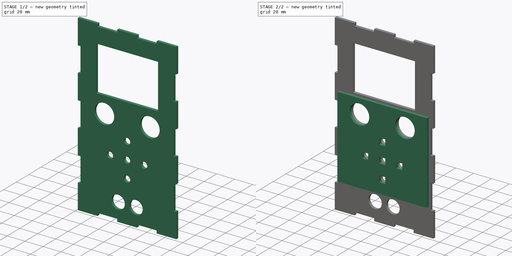
[diagram: build sequence overview — one tinted view per stage of 2, left to right]
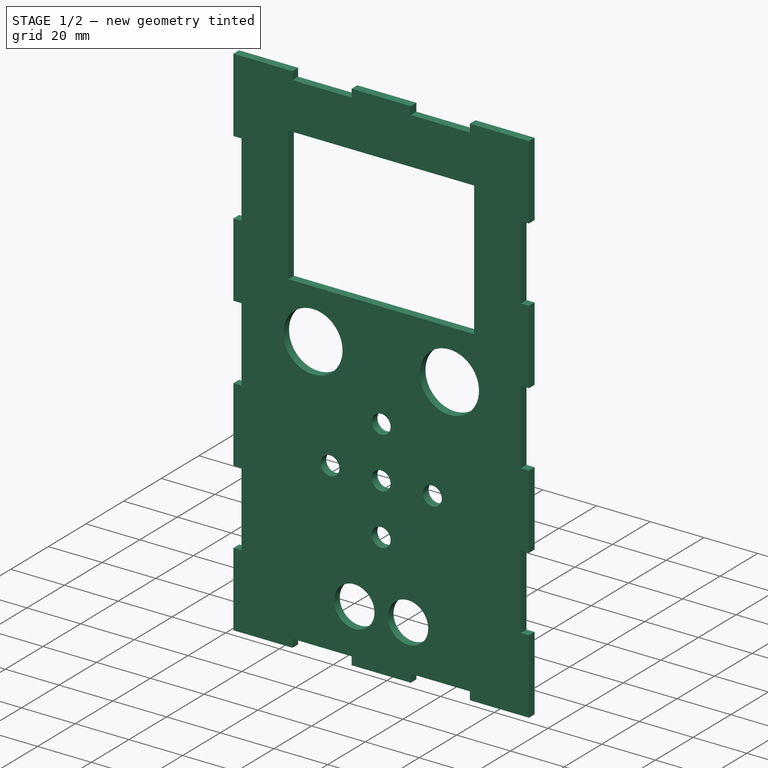
[diagram: stage 1 of 2 — iso view after this stage's code; geometry added in this stage tinted green]
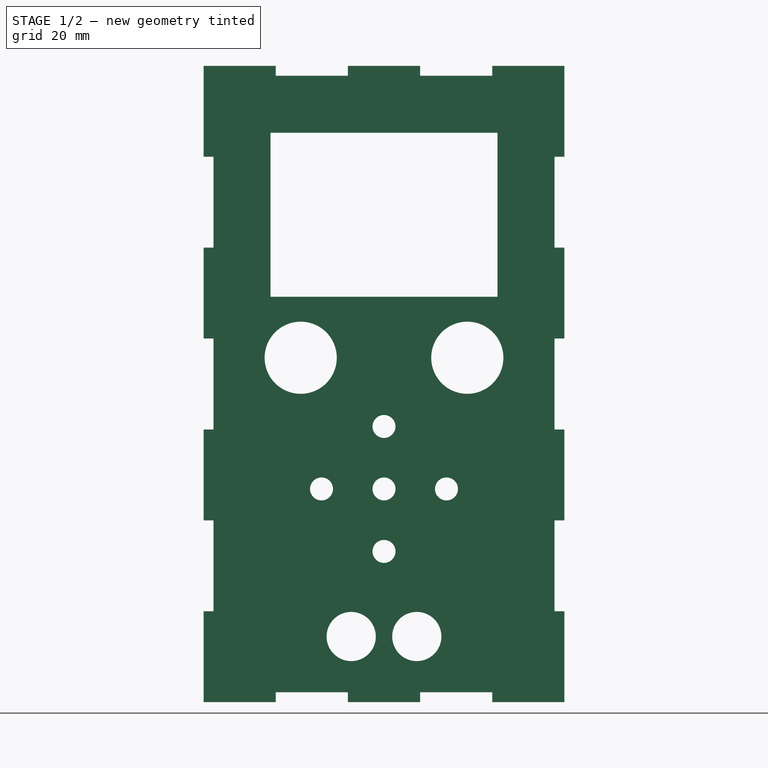
[diagram: stage 1 of 2 — front view after this stage's code; geometry added in this stage tinted green]
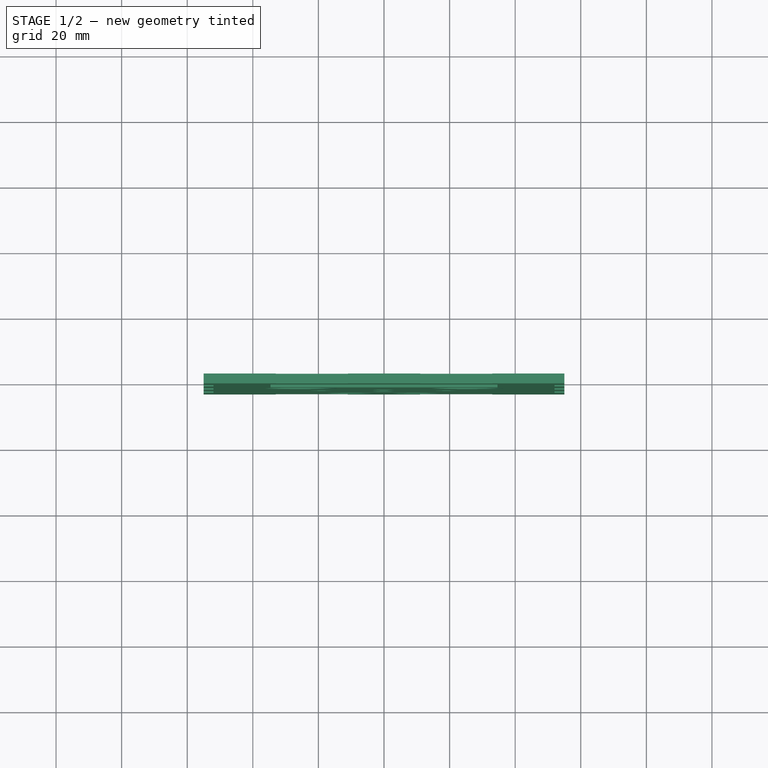
[diagram: stage 1 of 2 — top view after this stage's code; geometry added in this stage tinted green]
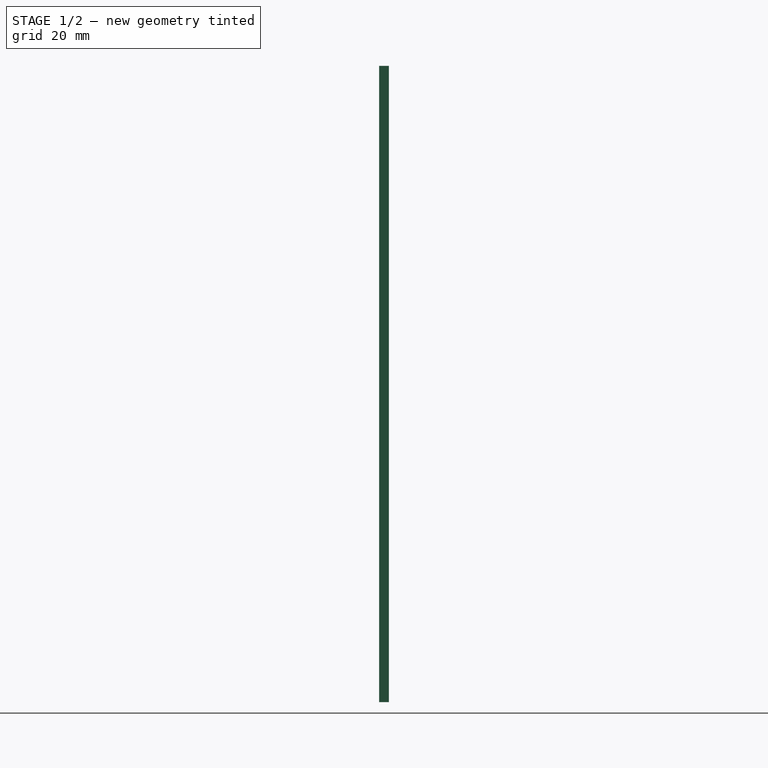
[diagram: stage 1 of 2 — right view after this stage's code; geometry added in this stage tinted green]
FCSTD DOCUMENT  (FreeCAD 0.21R33675 (Git))
Label: digipsu
License: All rights reserved
LicenseURL: https://en.wikipedia.org/wiki/All_rights_reserved
objects: Sketcher::SketchObject×3, PartDesign::Pad×2, PartDesign::Plane×2, Spreadsheet::Sheet×1, PartDesign::Body×1
note: 10 computed .brp shape members not serialized (recipe doc carries the construction recipe); baked Part::Feature solids carry a one-line shape summary decoded from their .brp

FEATURE [Sketcher::SketchObject] Sketch  label="Front"
  FullyConstrained = true
  MapMode = 5
  Placement = pos=(0,0,0) rot=(1,0,0;1.5708rad)
  Support = -> [XZ_Plane]
  expr: Constraints[139] = <<Parameters>>.thickness
  expr: Constraints[32] = <<Parameters>>.height
  expr: Constraints[33] = <<Parameters>>.width
  expr: Constraints[34] = <<Parameters>>.thickness
  expr: Constraints[70] = <<Parameters>>.thickness
  expr: Constraints[96] = <<Parameters>>.thickness
  sketch-geometry (71):
    g0: LineSegment StartX=-55 StartY=-97 StartZ=0 EndX=55 EndY=-97 EndZ=0
    g1: LineSegment StartX=55 StartY=-97 StartZ=0 EndX=55 EndY=97 EndZ=0
    g2: LineSegment StartX=55 StartY=97 StartZ=0 EndX=-55 EndY=97 EndZ=0
    g3: GeomPoint X=0 Y=0 Z=0
    g4: LineSegment StartX=55 StartY=97 StartZ=0 EndX=55 EndY=69.2857 EndZ=0
    g5: LineSegment StartX=55 StartY=69.2857 StartZ=0 EndX=52 EndY=69.2857 EndZ=0
    g6: LineSegment StartX=52 StartY=69.2857 StartZ=0 EndX=52 EndY=41.5714 EndZ=0
    g7: LineSegment StartX=55 StartY=41.5714 StartZ=0 EndX=55 EndY=13.8571 EndZ=0
    g8: LineSegment StartX=55 StartY=13.8571 StartZ=0 EndX=52 EndY=13.8571 EndZ=0
    g9: LineSegment StartX=55 StartY=-41.5714 StartZ=0 EndX=52 EndY=-41.5714 EndZ=0
    g10: LineSegment StartX=52 StartY=-41.5714 StartZ=0 EndX=52 EndY=-69.2857 EndZ=0
    g11: LineSegment StartX=52 StartY=-69.2857 StartZ=0 EndX=55 EndY=-69.2857 EndZ=0
    g12: LineSegment StartX=55 StartY=-69.2857 StartZ=0 EndX=55 EndY=-97 EndZ=0
    g13: LineSegment StartX=55 StartY=-41.5714 StartZ=0 EndX=55 EndY=-13.8571 EndZ=0
    g14: LineSegment StartX=55 StartY=-13.8571 StartZ=0 EndX=52 EndY=-13.8571 EndZ=0
    g15: LineSegment StartX=52 StartY=-13.8571 StartZ=0 EndX=52 EndY=13.8571 EndZ=0
    g16: LineSegment StartX=52 StartY=41.5714 StartZ=0 EndX=55 EndY=41.5714 EndZ=0
    g17: LineSegment StartX=55 StartY=-97 StartZ=0 EndX=33 EndY=-97 EndZ=0
    g18: LineSegment StartX=33 StartY=-97 StartZ=0 EndX=33 EndY=-94 EndZ=0
    g19: LineSegment StartX=33 StartY=-94 StartZ=0 EndX=11 EndY=-94 EndZ=0
    g20: LineSegment StartX=11 StartY=-94 StartZ=0 EndX=11 EndY=-97 EndZ=0
    g21: LineSegment StartX=11 StartY=-97 StartZ=0 EndX=-11 EndY=-97 EndZ=0
    g22: LineSegment StartX=-11 StartY=-97 StartZ=0 EndX=-11 EndY=-94 EndZ=0
    g23: LineSegment StartX=-11 StartY=-94 StartZ=0 EndX=-33 EndY=-94 EndZ=0
    g24: LineSegment StartX=-33 StartY=-94 StartZ=0 EndX=-33 EndY=-97 EndZ=0
    g25: LineSegment StartX=-33 StartY=-97 StartZ=0 EndX=-55 EndY=-97 EndZ=0
    g26: LineSegment StartX=55 StartY=97 StartZ=0 EndX=33 EndY=97 EndZ=0
    g27: LineSegment StartX=33 StartY=97 StartZ=0 EndX=33 EndY=94 EndZ=0
    g28: LineSegment StartX=33 StartY=94 StartZ=0 EndX=11 EndY=94 EndZ=0
    g29: LineSegment StartX=11 StartY=94 StartZ=0 EndX=11 EndY=97 EndZ=0
    g30: LineSegment StartX=11 StartY=97 StartZ=0 EndX=-11 EndY=97 EndZ=0
    g31: LineSegment StartX=-11 StartY=97 StartZ=0 EndX=-11 EndY=94 EndZ=0
    g32: LineSegment StartX=-11 StartY=94 StartZ=0 EndX=-33 EndY=94 EndZ=0
    g33: LineSegment StartX=-33 StartY=94 StartZ=0 EndX=-33 EndY=97 EndZ=0
    g34: LineSegment StartX=-33 StartY=97 StartZ=0 EndX=-55 EndY=97 EndZ=0
    g35: LineSegment StartX=-55 StartY=-97 StartZ=0 EndX=-55 EndY=97 EndZ=0
    g36: LineSegment StartX=-55 StartY=97 StartZ=0 EndX=-55 EndY=69.2857 EndZ=0
    g37: LineSegment StartX=-55 StartY=69.2857 StartZ=0 EndX=-52 EndY=69.2857 EndZ=0
    g38: LineSegment StartX=-52 StartY=69.2857 StartZ=0 EndX=-52 EndY=41.5714 EndZ=0
    g39: LineSegment StartX=-55 StartY=41.5714 StartZ=0 EndX=-55 EndY=13.8571 EndZ=0
    g40: LineSegment StartX=-55 StartY=13.8571 StartZ=0 EndX=-52 EndY=13.8571 EndZ=0
    g41: LineSegment StartX=-55 StartY=-41.5714 StartZ=0 EndX=-52 EndY=-41.5714 EndZ=0
    g42: LineSegment StartX=-52 StartY=-41.5714 StartZ=0 EndX=-52 EndY=-69.2857 EndZ=0
    g43: LineSegment StartX=-52 StartY=-69.2857 StartZ=0 EndX=-55 EndY=-69.2857 EndZ=0
    g44: LineSegment StartX=-55 StartY=-69.2857 StartZ=0 EndX=-55 EndY=-97 EndZ=0
    g45: LineSegment StartX=-55 StartY=-41.5714 StartZ=0 EndX=-55 EndY=-13.8571 EndZ=0
    g46: LineSegment StartX=-55 StartY=-13.8571 StartZ=0 EndX=-52 EndY=-13.8571 EndZ=0
    g47: LineSegment StartX=-52 StartY=-13.8571 StartZ=0 EndX=-52 EndY=13.8571 EndZ=0
    g48: LineSegment StartX=-52 StartY=41.5714 StartZ=0 EndX=-55 EndY=41.5714 EndZ=0
    g49: LineSegment StartX=-34.6 StartY=76.6 StartZ=0 EndX=-34.6 EndY=26.6 EndZ=0
    g50: LineSegment StartX=-34.6 StartY=26.6 StartZ=0 EndX=34.6 EndY=26.6 EndZ=0
    g51: LineSegment StartX=34.6 StartY=26.6 StartZ=0 EndX=34.6 EndY=76.6 EndZ=0
    g52: LineSegment StartX=34.6 StartY=76.6 StartZ=0 EndX=-34.6 EndY=76.6 EndZ=0
    g53: GeomPoint X=0 Y=51.6 Z=0
    g54: Circle CenterX=-25.4 CenterY=8.005 CenterZ=0 NormalX=0 NormalY=0 NormalZ=1 AngleXU=0 Radius=11
    g55: Circle CenterX=25.4 CenterY=8.005 CenterZ=0 NormalX=0 NormalY=0 NormalZ=1 AngleXU=0 Radius=11
    g56: Circle CenterX=0 CenterY=-12.95 CenterZ=0 NormalX=0 NormalY=0 NormalZ=1 AngleXU=0 Radius=3.5
    g57: Circle CenterX=-19.05 CenterY=-32 CenterZ=0 NormalX=0 NormalY=0 NormalZ=1 AngleXU=0 Radius=3.5
    g58: Circle CenterX=0 CenterY=-32 CenterZ=0 NormalX=0 NormalY=0 NormalZ=1 AngleXU=0 Radius=3.5
    g59: Circle CenterX=19.05 CenterY=-32 CenterZ=0 NormalX=0 NormalY=0 NormalZ=1 AngleXU=0 Radius=3.5
    g60: Circle CenterX=0 CenterY=-51.05 CenterZ=0 NormalX=0 NormalY=0 NormalZ=1 AngleXU=0 Radius=3.5
    g61: Circle CenterX=-10 CenterY=-77 CenterZ=0 NormalX=0 NormalY=0 NormalZ=1 AngleXU=0 Radius=7.5
    g62: Circle CenterX=10 CenterY=-77 CenterZ=0 NormalX=0 NormalY=0 NormalZ=1 AngleXU=0 Radius=7.5
    g63: LineSegment StartX=0 StartY=-32 StartZ=0 EndX=19.05 EndY=-32 EndZ=0
    g64: LineSegment StartX=0 StartY=-32 StartZ=0 EndX=-19.05 EndY=-32 EndZ=0
    g65: LineSegment StartX=0 StartY=-32 StartZ=0 EndX=0 EndY=-51.05 EndZ=0
    g66: LineSegment StartX=0 StartY=-32 StartZ=0 EndX=0 EndY=-12.95 EndZ=0
    g67: LineSegment StartX=-34.6 StartY=76.6 StartZ=0 EndX=-55 EndY=76.6 EndZ=0
    g68: LineSegment StartX=-34.6 StartY=76.6 StartZ=0 EndX=-34.6 EndY=97 EndZ=0
    g69: Circle CenterX=-25.4 CenterY=8.005 CenterZ=0 NormalX=0 NormalY=0 NormalZ=1 AngleXU=0 Radius=12.5
    g70: Circle CenterX=25.4 CenterY=8.005 CenterZ=0 NormalX=0 NormalY=0 NormalZ=1 AngleXU=0 Radius=12.5
  constraints (199):
    c: Coincident(g0,g1)
    c: Coincident(g1,g2)
    c: Symmetric(g0,g2,g3)
    c: Coincident(g3,g-1)
    c: Coincident(g4,g1)
    c: PointOnObject(g4,g1)
    c: Vertical(g4)
    c: Coincident(g5,g4)
    c: Horizontal(g5)
    c: Coincident(g6,g5)
    c: PointOnObject(g7,g1)
    c: PointOnObject(g7,g1)
    c: Coincident(g8,g7)
    c: Horizontal(g8)
    c: PointOnObject(g9,g1)
    c: Horizontal(g9)
    c: Coincident(g10,g9)
    c: Coincident(g11,g10)
    c: PointOnObject(g11,g1)
    c: Horizontal(g11)
    c: Coincident(g12,g11)
    c: Coincident(g12,g0)
    c: Coincident(g13,g9)
    c: PointOnObject(g13,g1)
    c: Coincident(g14,g13)
    c: Horizontal(g14)
    c: Coincident(g15,g14)
    c: Coincident(g15,g8)
    c: Vertical(g15)
    c: Equal(g4,g7)
    c: Equal(g7,g13)
    c: Equal(g13,g12)
    c: DistanceY(g1,g1) = 194
    c: DistanceX(g0,g0) = 110
    c: DistanceX(g5,g5) = 3
    c: Coincident(g16,g6)
    c: Coincident(g16,g7)
    c: Horizontal(g16)
    c: Equal(g5,g8)
    c: Equal(g5,g9)
    c: Vertical(g10)
    c: Equal(g6,g10)
    c: Equal(g6,g15)
    c: Equal(g6,g4)
    c: Vertical(g6)
    c: Coincident(g17,g12)
    c: PointOnObject(g17,g0)
    c: Coincident(g18,g17)
    c: Vertical(g18)
    c: Coincident(g19,g18)
    c: Horizontal(g19)
    c: Coincident(g20,g19)
    c: PointOnObject(g20,g0)
    c: Vertical(g20)
    c: Coincident(g21,g20)
    c: PointOnObject(g21,g0)
    c: Horizontal(g21)
    c: Coincident(g22,g21)
    c: Vertical(g22)
    c: Coincident(g23,g22)
    c: Horizontal(g23)
    c: Coincident(g24,g23)
    c: PointOnObject(g24,g0)
    c: Vertical(g24)
    c: Coincident(g25,g24)
    c: Equal(g24,g20)
    c: Equal(g23,g19)
    c: Equal(g25,g21)
    c: Equal(g21,g17)
    c: Equal(g23,g25)
    c: DistanceY(g24,g24) = 3
    c: Coincident(g27,g26)
    c: Vertical(g27)
    c: Coincident(g28,g27)
    c: Horizontal(g28)
    c: Coincident(g29,g28)
    c: Vertical(g29)
    c: Coincident(g30,g29)
    c: Coincident(g31,g30)
    c: Vertical(g31)
    c: Coincident(g32,g31)
    c: Horizontal(g32)
    c: Coincident(g33,g32)
    c: Vertical(g33)
    c: Coincident(g34,g33)
    c: Equal(g33,g29)
    c: Equal(g32,g28)
    c: Equal(g34,g30)
    c: Equal(g30,g26)
    c: Equal(g32,g34)
    c: PointOnObject(g33,g2)
    c: Coincident(g4,g26)
    c: PointOnObject(g26,g2)
    c: PointOnObject(g29,g2)
    c: PointOnObject(g30,g2)
    c: Horizontal(g2)
    c: DistanceY(g33,g33) = 3
    c: Coincident(g36,g35)
    c: PointOnObject(g36,g35)
    c: Vertical(g36)
    c: Coincident(g37,g36)
    c: Horizontal(g37)
    c: Coincident(g38,g37)
    c: PointOnObject(g39,g35)
    c: PointOnObject(g39,g35)
    c: Coincident(g40,g39)
    c: Horizontal(g40)
    c: PointOnObject(g41,g35)
    c: Horizontal(g41)
    c: Coincident(g42,g41)
    c: Coincident(g43,g42)
    c: PointOnObject(g43,g35)
    c: Horizontal(g43)
    c: Coincident(g44,g43)
    c: Coincident(g45,g41)
    c: PointOnObject(g45,g35)
    c: Coincident(g46,g45)
    c: Horizontal(g46)
    c: Coincident(g47,g46)
    c: Coincident(g47,g40)
    c: Vertical(g47)
    c: Equal(g36,g39)
    c: Equal(g39,g45)
    c: Equal(g45,g44)
    c: Coincident(g48,g38)
    c: Coincident(g48,g39)
    c: Horizontal(g48)
    c: Equal(g37,g40)
    c: Equal(g37,g41)
    c: Vertical(g42)
    c: Equal(g38,g42)
    c: Equal(g38,g47)
    c: Equal(g38,g36)
    c: Vertical(g38)
    c: Coincident(g36,g34)
    c: Coincident(g35,g25)
    c: Coincident(g0,g25)
    c: Coincident(g2,g34)
    c: Coincident(g25,g44)
    c: DistanceX(g37,g37) = 3
    c: Coincident(g49,g50)
    c: Coincident(g50,g51)
    c: Coincident(g51,g52)
    c: Coincident(g52,g49)
    c: Horizontal(g50)
    c: Horizontal(g52)
    c: Vertical(g49)
    c: Vertical(g51)
    c: Symmetric(g50,g49,g53)
    c: PointOnObject(g53,g-2)
    c: DistanceX(g52,g52) = 69.2
    c: DistanceY(g49,g49) = 50
    c: PointOnObject(g58,g-2)
    c: Coincident(g63,g58)
    c: Coincident(g63,g59)
    c: Horizontal(g63)
    c: Coincident(g64,g58)
    c: Coincident(g64,g57)
    c: Coincident(g65,g58)
    c: Coincident(g65,g60)
    c: Coincident(g66,g58)
    c: Coincident(g66,g56)
    c: Horizontal(g64)
    c: Vertical(g66)
    c: Vertical(g65)
    c: Equal(g66,g64)
    c: Equal(g64,g65)
    c: Equal(g65,g63)
    c: Equal(g58,g56)
    c: Equal(g58,g59)
    c: Equal(g58,g57)
    c: Equal(g58,g60)
    c: Equal(g55,g54)
    c: Equal(g61,g62)
    c: Symmetric(g55,g54,g-2)
    c: Symmetric(g61,g62,g-2)
    c: Diameter(g54) = 22
    c: DistanceX(g61,g62) = 20
    c: DistanceX(g54,g55) = 50.8
    c: DistanceY(g25,g61) = 20
    c: DistanceY(g25,g58) = 65
    c: DistanceY(g25,g54) = 105.005
    c: DistanceY(g25,g53) = 148.6
    c: Diameter(g57) = 7
    c: DistanceY(g66,g66) = 19.05
    c: Diameter(g61) = 15
    c: Coincident(g67,g49)
    c: PointOnObject(g67,g36)
    c: Horizontal(g67)
    c: Coincident(g68,g49)
    c: PointOnObject(g68,g34)
    c: Vertical(g68)
    c: Equal(g68,g67)
    c: Coincident(g69,g54)
    c: Coincident(g70,g55)
    c: Diameter(g69) = 25
    c: Equal(g70,g69)
    c: DistanceX(g54,g56) = 25.4
    c: DistanceY(g56,g54) = 20.955
FEATURE [Spreadsheet::Sheet] Spreadsheet  label="Parameters"
  cells = A1='Width; B1(width)=110; A2='Height; B2(height)=194; A3='Depth; B3(depth)=300; A4='Thickness; B4(thickness)=3
FEATURE [PartDesign::Pad] Pad
  Direction = (0,-1,2e-16)
  Length = 3
  Length2 = 10
  Placement = pos=(0,0,0) rot=(1,0,0;1.5708rad)
  Profile = -> Sketch
  ReferenceAxis = -> Sketch [N_Axis]
  Type = 0
  expr: Length = <<Parameters>>.thickness
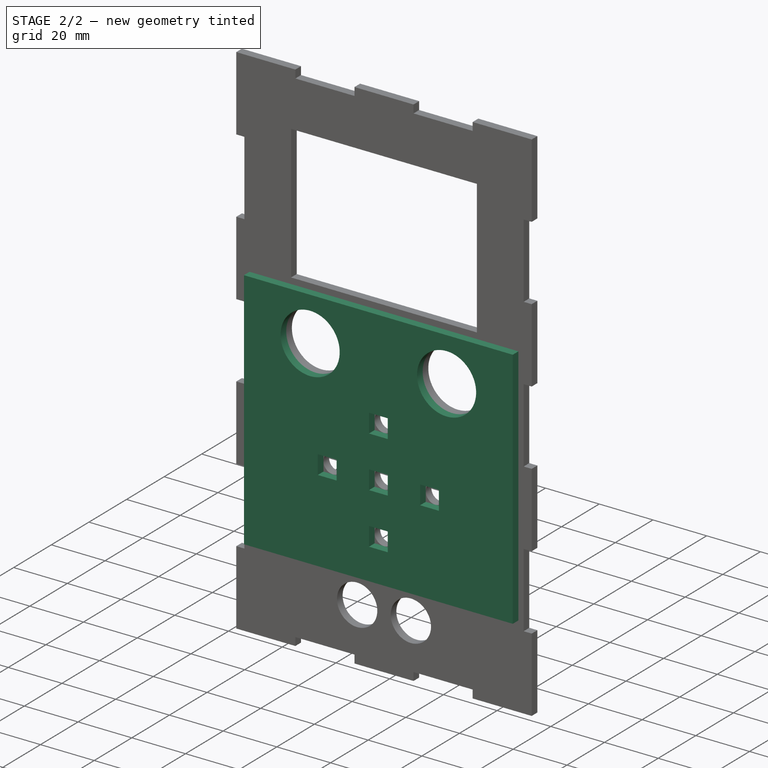
[diagram: stage 2 of 2 — iso view after this stage's code; geometry added in this stage tinted green]
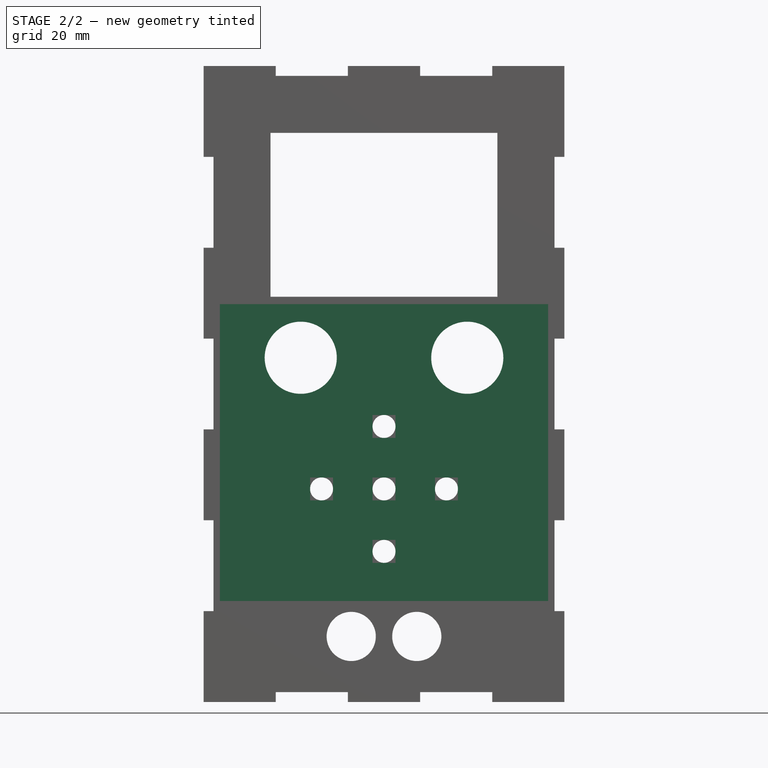
[diagram: stage 2 of 2 — front view after this stage's code; geometry added in this stage tinted green]
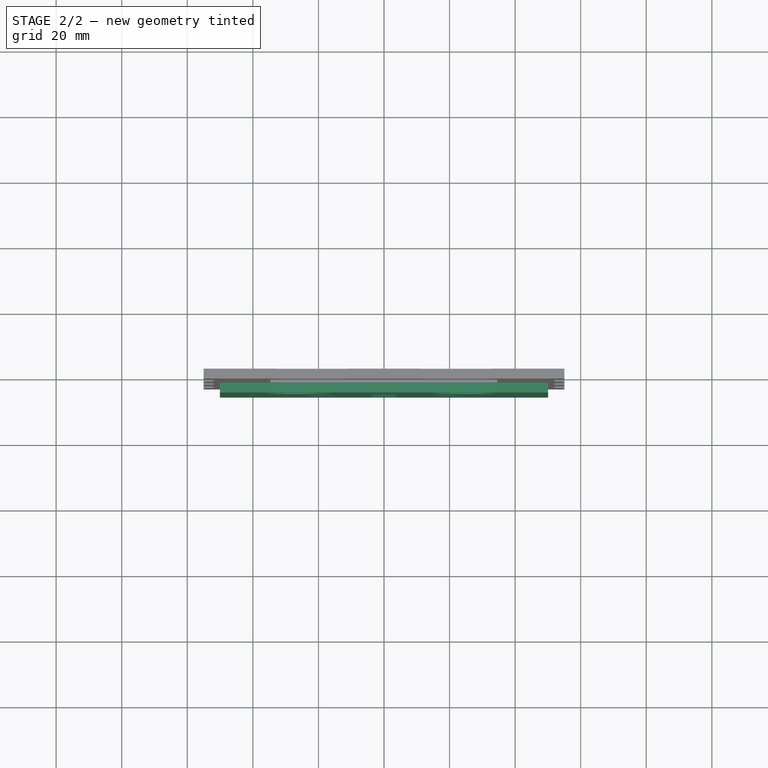
[diagram: stage 2 of 2 — top view after this stage's code; geometry added in this stage tinted green]
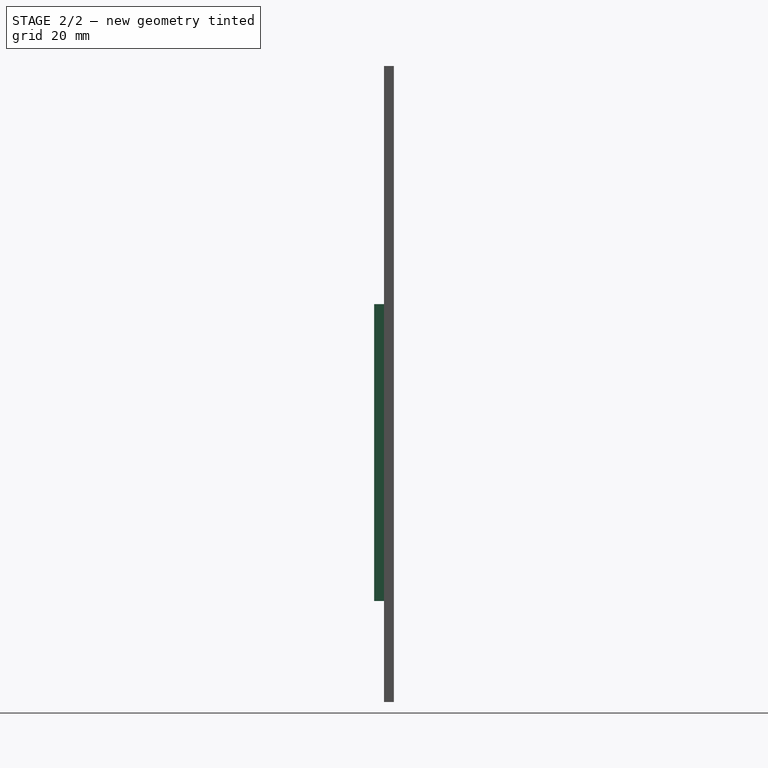
[diagram: stage 2 of 2 — right view after this stage's code; geometry added in this stage tinted green]
FEATURE [PartDesign::Plane] DatumPlane
  AttachmentOffset = pos=(0,0,55) rot=(0,0,1;0rad)
  Length = 60
  MapMode = 5
  Placement = pos=(55,-1.22e-14,1.22e-14) rot=(0.57735,0.57735,0.57735;2.0944rad)
  ResizeMode = 0
  Support = -> [YZ_Plane]
  Width = 60
  expr: .AttachmentOffset.Base.z = <<Parameters>>.width / 2
FEATURE [Sketcher::SketchObject] Sketch001  label="Left"
  FullyConstrained = true
  MapMode = 5
  Placement = pos=(55,-1.22e-14,1.22e-14) rot=(0.57735,0.57735,0.57735;2.0944rad)
  Support = -> [DatumPlane]
  expr: Constraints[10] = <<Parameters>>.height
  expr: Constraints[11] = <<Parameters>>.depth
  sketch-geometry (5):
    g0: LineSegment StartX=-300 StartY=97 StartZ=0 EndX=-300 EndY=-97 EndZ=0
    g1: LineSegment StartX=-300 StartY=-97 StartZ=0 EndX=0 EndY=-97 EndZ=0
    g2: LineSegment StartX=0 StartY=-97 StartZ=0 EndX=0 EndY=97 EndZ=0
    g3: LineSegment StartX=0 StartY=97 StartZ=0 EndX=-300 EndY=97 EndZ=0
    g4: GeomPoint X=-150 Y=0 Z=0
  constraints (13):
    c: Coincident(g0,g1)
    c: Coincident(g1,g2)
    c: Coincident(g2,g3)
    c: Coincident(g3,g0)
    c: Horizontal(g1)
    c: Horizontal(g3)
    c: Vertical(g0)
    c: Vertical(g2)
    c: Symmetric(g1,g0,g4)
    c: PointOnObject(g2,g-2)
    c: DistanceY(g0,g0) = 194
    c: DistanceX(g1,g1) = 300
    c: PointOnObject(g4,g-1)
FEATURE [PartDesign::Plane] DatumPlane001
  Length = 60
  MapMode = 5
  Placement = pos=(0,-3,7e-16) rot=(1,0,0;1.5708rad)
  ResizeMode = 0
  Support = -> [Pad]
  Width = 60
FEATURE [Sketcher::SketchObject] Sketch002
  ExternalGeometry = -> [Pad]
  FullyConstrained = false
  MapMode = 5
  Placement = pos=(0,-3,7e-16) rot=(1,0,0;1.5708rad)
  Support = -> [DatumPlane001]
  sketch-geometry (32):
    g0: LineSegment StartX=-50.051 StartY=24.3801 StartZ=0 EndX=-50.051 EndY=-66.1739 EndZ=0
    g1: LineSegment StartX=-50.051 StartY=-66.1739 StartZ=0 EndX=50.051 EndY=-66.1739 EndZ=0
    g2: LineSegment StartX=50.051 StartY=-66.1739 StartZ=0 EndX=50.051 EndY=24.3801 EndZ=0
    g3: LineSegment StartX=50.051 StartY=24.3801 StartZ=0 EndX=-50.051 EndY=24.3801 EndZ=0
    g4: GeomPoint X=0 Y=-20.8969 Z=0
    g5: Circle CenterX=-25 CenterY=8 CenterZ=0 NormalX=0 NormalY=0 NormalZ=1 AngleXU=0 Radius=11
    g6: Circle CenterX=25 CenterY=8 CenterZ=0 NormalX=0 NormalY=0 NormalZ=1 AngleXU=0 Radius=11
    g7: LineSegment StartX=-3.5 StartY=-16.45 StartZ=0 EndX=-3.5 EndY=-9.45 EndZ=0
    g8: LineSegment StartX=-3.5 StartY=-9.45 StartZ=0 EndX=3.5 EndY=-9.45 EndZ=0
    g9: LineSegment StartX=3.5 StartY=-9.45 StartZ=0 EndX=3.5 EndY=-16.45 EndZ=0
    g10: LineSegment StartX=3.5 StartY=-16.45 StartZ=0 EndX=-3.5 EndY=-16.45 EndZ=0
    g11: GeomPoint X=0 Y=-12.95 Z=0
    g12: LineSegment StartX=-3.5 StartY=-28.5 StartZ=0 EndX=-3.5 EndY=-35.5 EndZ=0
    g13: LineSegment StartX=-3.5 StartY=-35.5 StartZ=0 EndX=3.5 EndY=-35.5 EndZ=0
    g14: LineSegment StartX=3.5 StartY=-35.5 StartZ=0 EndX=3.5 EndY=-28.5 EndZ=0
    g15: LineSegment StartX=3.5 StartY=-28.5 StartZ=0 EndX=-3.5 EndY=-28.5 EndZ=0
    g16: GeomPoint X=0 Y=-32 Z=0
    g17: LineSegment StartX=15.55 StartY=-28.5 StartZ=0 EndX=15.55 EndY=-35.5 EndZ=0
    g18: LineSegment StartX=15.55 StartY=-35.5 StartZ=0 EndX=22.55 EndY=-35.5 EndZ=0
    g19: LineSegment StartX=22.55 StartY=-35.5 StartZ=0 EndX=22.55 EndY=-28.5 EndZ=0
    g20: LineSegment StartX=22.55 StartY=-28.5 StartZ=0 EndX=15.55 EndY=-28.5 EndZ=0
    g21: GeomPoint X=19.05 Y=-32 Z=0
    g22: LineSegment StartX=-15.55 StartY=-28.5 StartZ=0 EndX=-15.55 EndY=-35.5 EndZ=0
    g23: LineSegment StartX=-15.55 StartY=-35.5 StartZ=0 EndX=-22.55 EndY=-35.5 EndZ=0
    g24: LineSegment StartX=-22.55 StartY=-35.5 StartZ=0 EndX=-22.55 EndY=-28.5 EndZ=0
    g25: LineSegment StartX=-22.55 StartY=-28.5 StartZ=0 EndX=-15.55 EndY=-28.5 EndZ=0
    g26: GeomPoint X=-19.05 Y=-32 Z=0
    g27: LineSegment StartX=-3.5 StartY=-47.55 StartZ=0 EndX=-3.5 EndY=-54.55 EndZ=0
    g28: LineSegment StartX=-3.5 StartY=-54.55 StartZ=0 EndX=3.5 EndY=-54.55 EndZ=0
    g29: LineSegment StartX=3.5 StartY=-54.55 StartZ=0 EndX=3.5 EndY=-47.55 EndZ=0
    g30: LineSegment StartX=3.5 StartY=-47.55 StartZ=0 EndX=-3.5 EndY=-47.55 EndZ=0
    g31: GeomPoint X=0 Y=-51.05 Z=0
  constraints (77):
    c: Coincident(g0,g1)
    c: Coincident(g1,g2)
    c: Coincident(g2,g3)
    c: Coincident(g3,g0)
    c: Symmetric(g1,g0,g4)
    c: Coincident(g5,g-46)
    c: Coincident(g6,g-47)
    c: Coincident(g7,g8)
    c: Coincident(g8,g9)
    c: Coincident(g9,g10)
    c: Coincident(g10,g7)
    c: Horizontal(g8)
    c: Horizontal(g10)
    c: Vertical(g7)
    c: Vertical(g9)
    c: Symmetric(g8,g7,g11)
    c: Coincident(g11,g-50)
    c: Tangent(g10,g-50)
    c: Tangent(g7,g-50)
    c: Coincident(g12,g13)
    c: Coincident(g13,g14)
    c: Coincident(g14,g15)
    c: Coincident(g15,g12)
    c: Horizontal(g13)
    c: Horizontal(g15)
    c: Vertical(g12)
    c: Vertical(g14)
    c: Symmetric(g13,g12,g16)
    c: Coincident(g16,g-48)
    c: Coincident(g17,g18)
    c: Coincident(g18,g19)
    c: Coincident(g19,g20)
    c: Coincident(g20,g17)
    c: Horizontal(g18)
    c: Horizontal(g20)
    c: Vertical(g17)
    c: Vertical(g19)
    c: Symmetric(g18,g17,g21)
    c: Coincident(g21,g-51)
    c: Coincident(g22,g23)
    c: Coincident(g23,g24)
    c: Coincident(g24,g25)
    c: Coincident(g25,g22)
    c: Horizontal(g23)
    c: Horizontal(g25)
    c: Vertical(g22)
    c: Vertical(g24)
    c: Symmetric(g23,g22,g26)
    c: Coincident(g26,g-49)
    c: Coincident(g27,g28)
    c: Coincident(g28,g29)
    c: Coincident(g29,g30)
    c: Coincident(g30,g27)
    c: Horizontal(g28)
    c: Horizontal(g30)
    c: Vertical(g27)
    c: Vertical(g29)
    c: Symmetric(g28,g27,g31)
    c: Coincident(g31,g-52)
    c: Tangent(g15,g-48)
    c: Tangent(g14,g-48)
    c: Tangent(g20,g-51)
    c: Tangent(g-51,g25)
    c: Tangent(g-49,g22)
    c: Tangent(g-52,g30)
    c: Tangent(g27,g-52)
    c: Tangent(g-51,g17)
    c: Equal(g-46,g5)
    c: Equal(g-47,g6)
    c: Horizontal(g1)
    c: Horizontal(g3)
    c: Vertical(g0)
    c: Vertical(g2)
    c: DistanceX(g3,g3) = 100.102
    c: DistanceY(g0,g0) = 90.5541
    c: PointOnObject(g4,g-2)
    c: DistanceY(g-24,g-35) = 194
FEATURE [PartDesign::Pad] Pad002
  BaseFeature = -> Pad
  Direction = (0,-1,2e-16)
  Length = 3
  Length2 = 10
  Placement = pos=(0,0,0) rot=(1,0,0;1.5708rad)
  Profile = -> Sketch002
  ReferenceAxis = -> Sketch002 [N_Axis]
  Type = 0
  expr: Length = <<Parameters>>.thickness
FEATURE [PartDesign::Body] Body
  Group = -> [Sketch,Pad,DatumPlane,Sketch001,DatumPlane001,Sketch002,Pad002]
  Origin = -> Origin
  Tip = -> Pad002
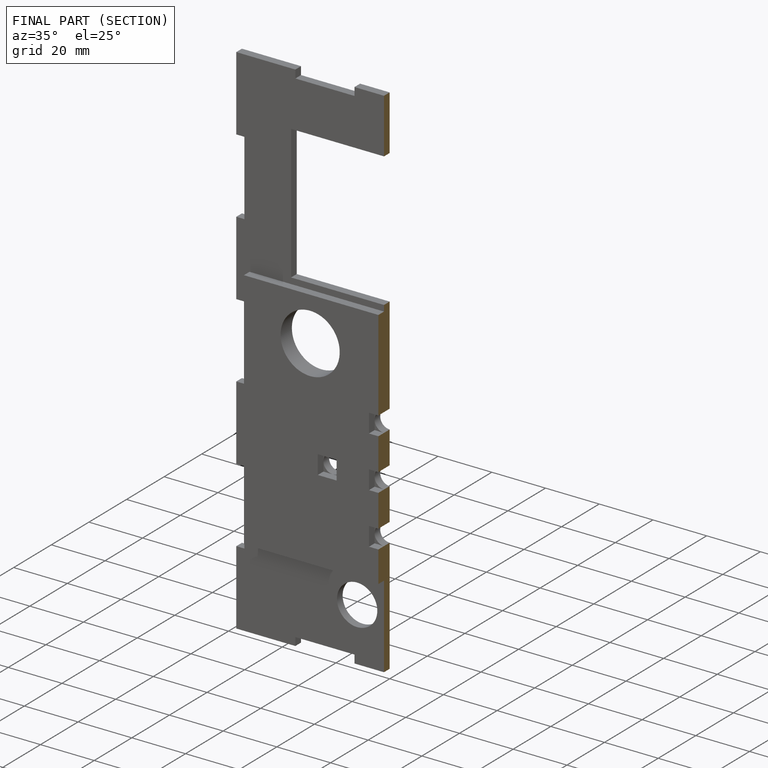
[diagram: finished part — half-section view (interior)]
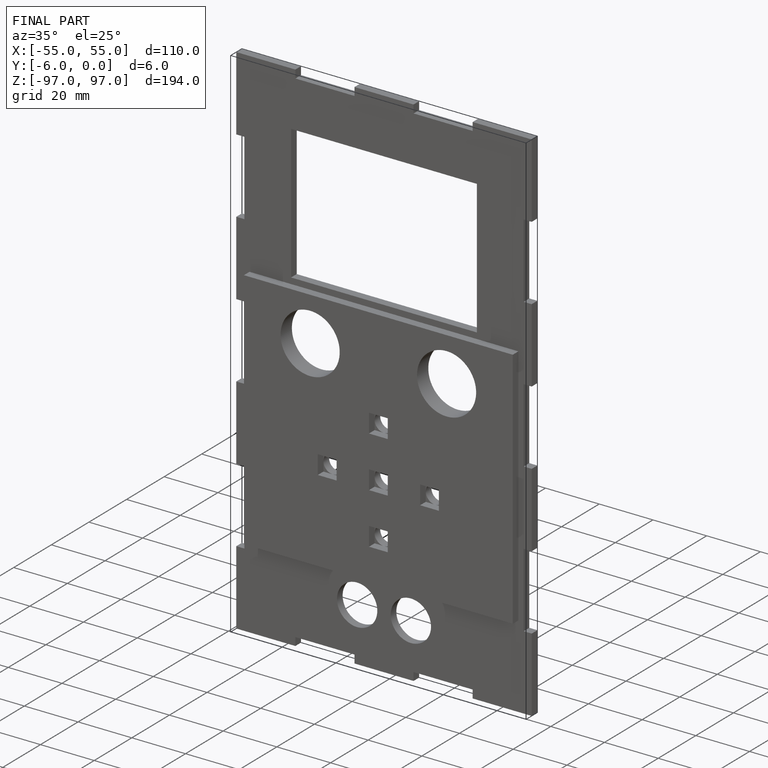
[diagram: finished part — iso view with bounding-box wireframe]
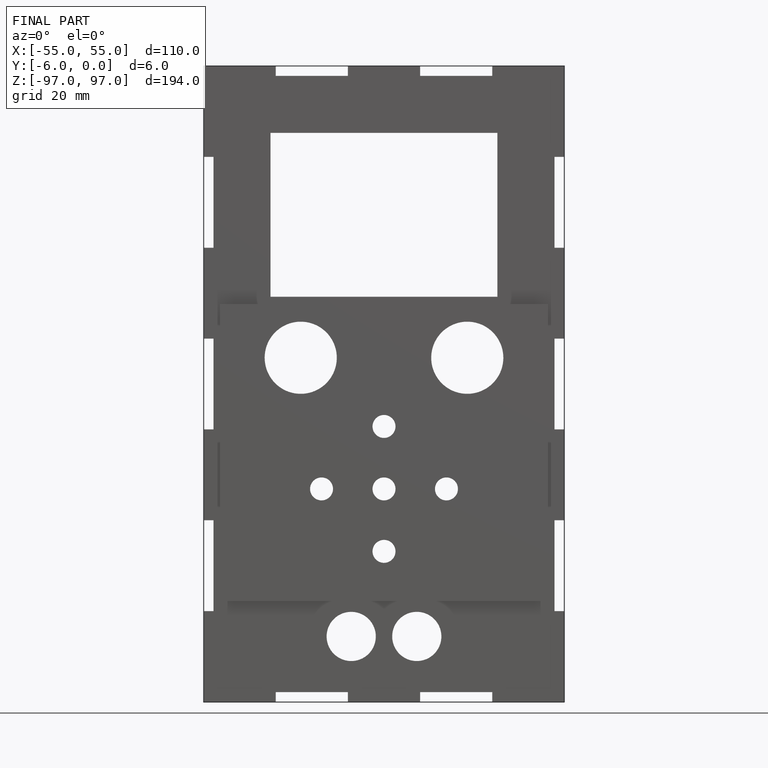
[diagram: finished part — front view with bounding-box wireframe]
